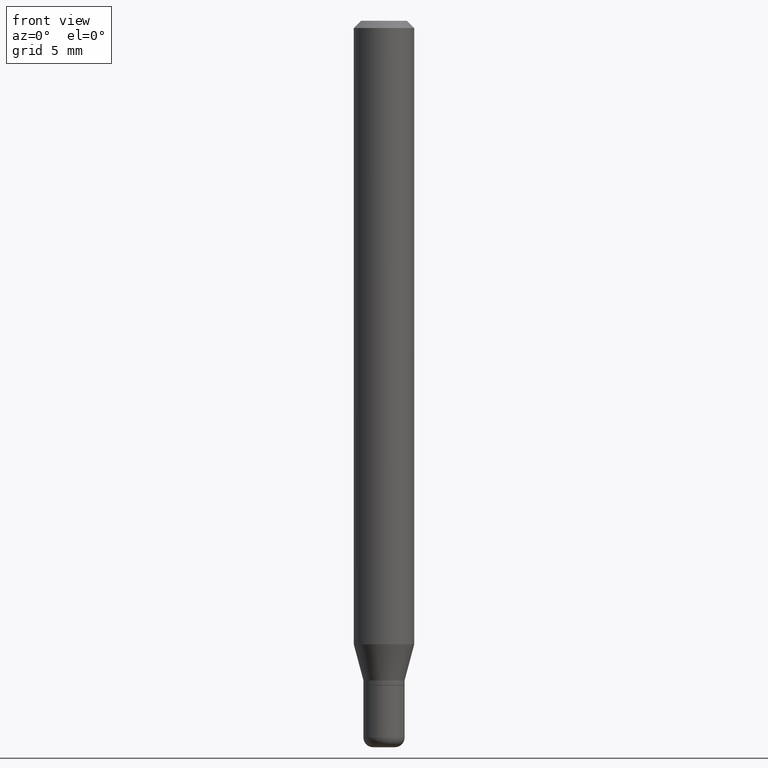
[diagram: clean part render]
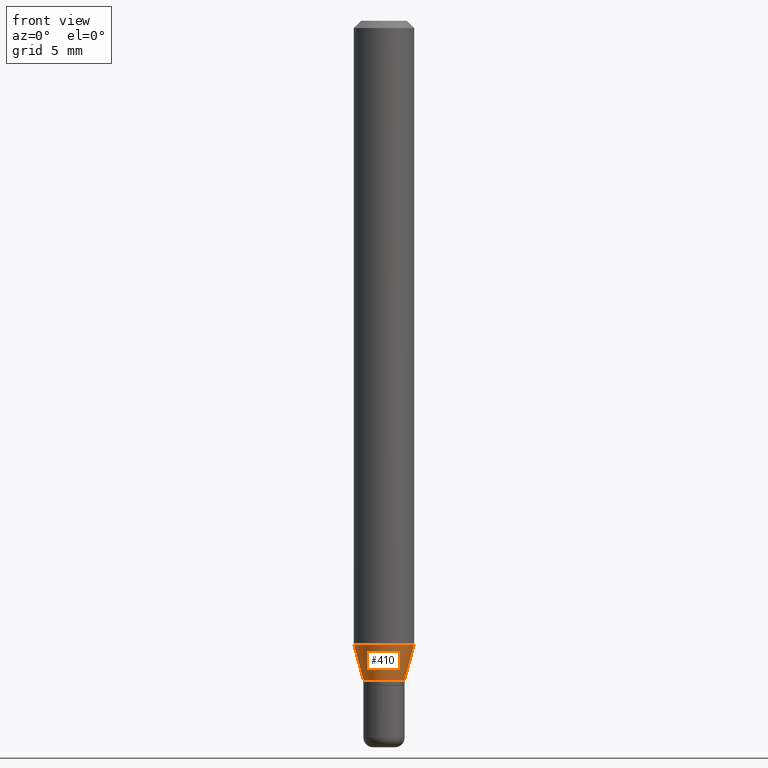
[diagram: same view with one face highlighted and labeled with its STEP entity id]
A machine part, front view. The second image highlights one B-rep face of the part: STEP entity #410.
In plain terms, the highlighted conical surface has half-angle 15 deg.
Its self-contained STEP definition (entity closure, byte-faithful):
#43 = VERTEX_POINT ( 'NONE', #498 ) ;
#49 = ORIENTED_EDGE ( 'NONE', *, *, #189, .T. ) ;
#62 = EDGE_CURVE ( 'NONE', #163, #43, #137, .T. ) ;
#67 = CARTESIAN_POINT ( 'NONE',  ( -0.04250000000000003081, -4.252058789727899918E-15, -1.362000000000000099 ) ) ;
#69 = DIRECTION ( 'NONE',  ( -2.445468806185136597E-29, 3.491481338843145583E-15, 1.000000000000000000 ) ) ;
#72 = DIRECTION ( 'NONE',  ( 1.000000000000000000, -6.982962677686262766E-15, 0.000000000000000000 ) ) ;
#80 = DIRECTION ( 'NONE',  ( -2.445468806185136597E-29, 3.491481338843145583E-15, 1.000000000000000000 ) ) ;
#116 = DIRECTION ( 'NONE',  ( -2.445468806185136597E-29, 3.491481338843145583E-15, 1.000000000000000000 ) ) ;
#135 = ORIENTED_EDGE ( 'NONE', *, *, #62, .F. ) ;
#137 = LINE ( 'NONE', #222, #385 ) ;
#163 = VERTEX_POINT ( 'NONE', #67 ) ;
#189 = EDGE_CURVE ( 'NONE', #163, #242, #395, .T. ) ;
#194 = CARTESIAN_POINT ( 'NONE',  ( 0.04250000000000003081, -5.052173497306030910E-15, -1.362000000000000099 ) ) ;
#207 = FACE_OUTER_BOUND ( 'NONE', #251, .T. ) ;
#220 = VERTEX_POINT ( 'NONE', #442 ) ;
#222 = CARTESIAN_POINT ( 'NONE',  ( -0.04250000000000003081, -4.453416920806321806E-15, -1.362000000000000099 ) ) ;
#227 = CARTESIAN_POINT ( 'NONE',  ( 0.04250000000000003081, -5.052173497306030910E-15, -1.362000000000000099 ) ) ;
#242 = VERTEX_POINT ( 'NONE', #227 ) ;
#251 = EDGE_LOOP ( 'NONE', ( #135, #49, #328, #374 ) ) ;
#273 = VECTOR ( 'NONE', #506, 39.37007874015748143 ) ;
#282 = AXIS2_PLACEMENT_3D ( 'NONE', #484, #116, #438 ) ;
#286 = EDGE_CURVE ( 'NONE', #242, #220, #338, .T. ) ;
#308 = CARTESIAN_POINT ( 'NONE',  ( 3.330728514024156148E-29, -4.755397583504364259E-15, -1.362000000000000099 ) ) ;
#328 = ORIENTED_EDGE ( 'NONE', *, *, #286, .T. ) ;
#332 = AXIS2_PLACEMENT_3D ( 'NONE', #308, #80, #400 ) ;
#338 = LINE ( 'NONE', #194, #273 ) ;
#348 = AXIS2_PLACEMENT_3D ( 'NONE', #426, #69, #72 ) ;
#358 = EDGE_CURVE ( 'NONE', #43, #220, #491, .T. ) ;
#374 = ORIENTED_EDGE ( 'NONE', *, *, #358, .F. ) ;
#385 = VECTOR ( 'NONE', #459, 39.37007874015748143 ) ;
#395 = CIRCLE ( 'NONE', #332, 0.04250000000000003081 ) ;
#400 = DIRECTION ( 'NONE',  ( 1.000000000000000000, -6.982962677686269866E-15, 0.000000000000000000 ) ) ;
#410 = ADVANCED_FACE ( 'NONE', ( #207 ), #509, .T. ) ;
#426 = CARTESIAN_POINT ( 'NONE',  ( 3.148196237364002379E-29, -4.494789868499541434E-15, -1.287358983848622795 ) ) ;
#438 = DIRECTION ( 'NONE',  ( 1.000000000000000000, -6.982962677686269866E-15, 0.000000000000000000 ) ) ;
#442 = CARTESIAN_POINT ( 'NONE',  ( 0.06250000000000000000, -4.931225035854932314E-15, -1.287358983848622795 ) ) ;
#459 = DIRECTION ( 'NONE',  ( -0.2588190451025210725, 5.211531920934548675E-15, 0.9659258262890682012 ) ) ;
#484 = CARTESIAN_POINT ( 'NONE',  ( 3.330728514024156148E-29, -4.755397583504364259E-15, -1.362000000000000099 ) ) ;
#491 = CIRCLE ( 'NONE', #348, 0.06250000000000000000 ) ;
#498 = CARTESIAN_POINT ( 'NONE',  ( -0.06250000000000000000, -4.050700658649478029E-15, -1.287358983848622795 ) ) ;
#506 = DIRECTION ( 'NONE',  ( 0.2588190451025210725, 1.565188264969624137E-15, 0.9659258262890682012 ) ) ;
#509 = CONICAL_SURFACE ( 'NONE', #282, 0.04250000000000003081, 0.2617993877991497409 ) ;